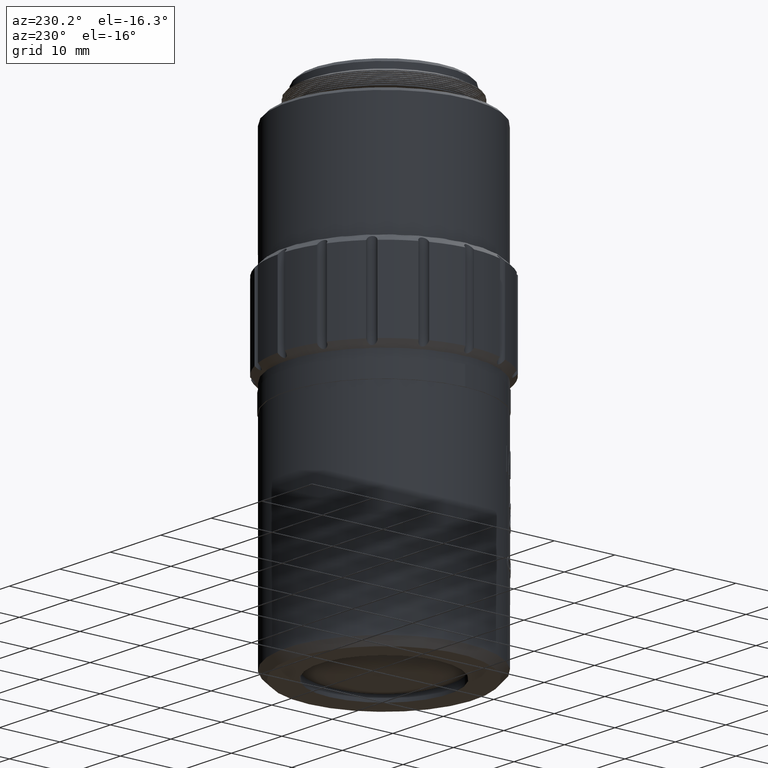
[diagram: clean part render]
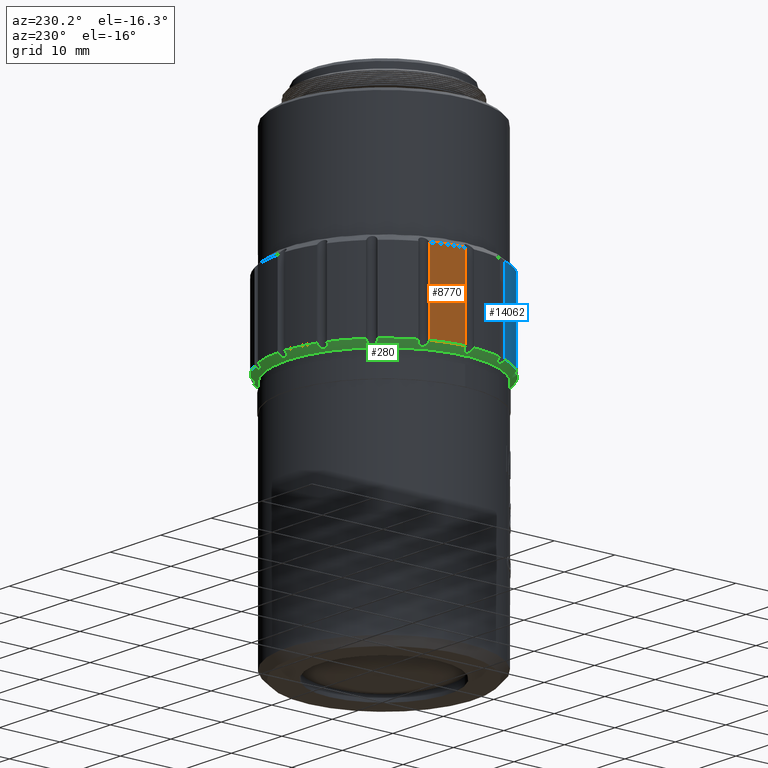
[diagram: same view with three faces highlighted in distinct colors, each labeled with its STEP entity id]
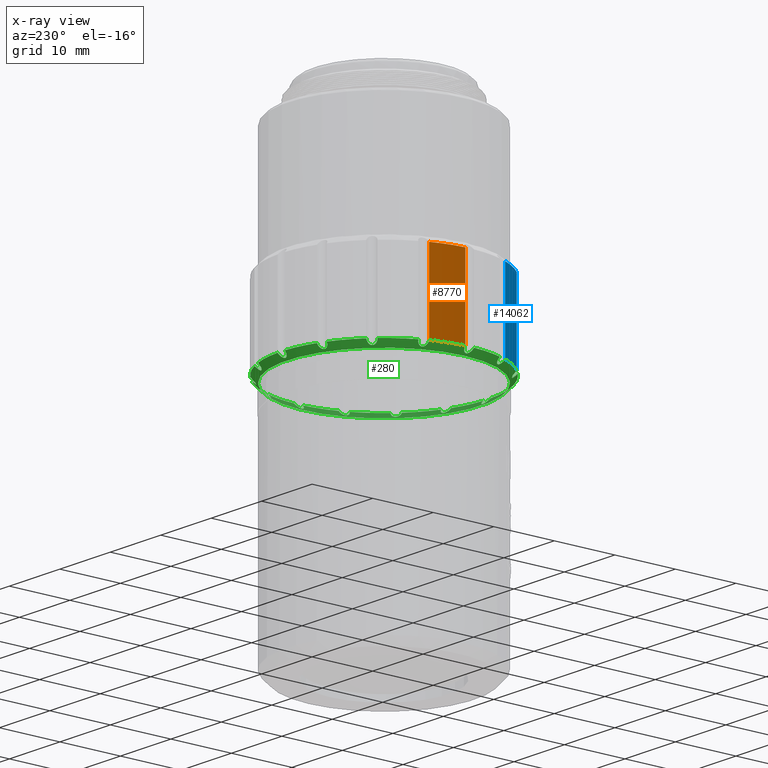
[diagram: x-ray of the same camera — body ghosted, the three highlighted faces saturated]
A machine part, auxiliary view with three faces highlighted in distinct colors.
The next image is the same camera in x-ray (body ghosted, the three faces saturated) — at least one of them is partly hidden behind the body in this view.
Their STEP definitions:

[orange] entity #8770 — the highlighted cylindrical surface (partial cylindrical patch) has radius 17 mm, axis along (-0, -0, -1).
#864 = CARTESIAN_POINT ( 'NONE',  ( -138.6262848226419635, 27.86120965566641772, -5.050000000000006928 ) ) ;
#1099 = EDGE_CURVE ( 'NONE', #17673, #10161, #13068, .T. ) ;
#1629 = CYLINDRICAL_SURFACE ( 'NONE', #13304, 16.99999999999998579 ) ;
#2352 = ORIENTED_EDGE ( 'NONE', *, *, #10345, .T. ) ;
#2440 = LINE ( 'NONE', #864, #11191 ) ;
#2548 = EDGE_LOOP ( 'NONE', ( #3011, #13245, #4026, #2352 ) ) ;
#2551 = DIRECTION ( 'NONE',  ( -0.000000000000000000, -0.000000000000000000, -1.000000000000000000 ) ) ;
#3011 = ORIENTED_EDGE ( 'NONE', *, *, #10716, .T. ) ;
#4026 = ORIENTED_EDGE ( 'NONE', *, *, #1099, .T. ) ;
#5083 = DIRECTION ( 'NONE',  ( -1.000000000000000000, 0.000000000000000000, 0.000000000000000000 ) ) ;
#5206 = CARTESIAN_POINT ( 'NONE',  ( -139.6482864039182346, 22.72326074510129246, -6.499999999999999112 ) ) ;
#6190 = DIRECTION ( 'NONE',  ( 1.000000000000000000, 0.000000000000000000, 0.000000000000000000 ) ) ;
#7058 = LINE ( 'NONE', #14191, #15279 ) ;
#7080 = CARTESIAN_POINT ( 'NONE',  ( -139.6482864039182346, 22.72326074510129246, 6.500000000000001776 ) ) ;
#7141 = DIRECTION ( 'NONE',  ( -1.000000000000000000, 0.000000000000000000, 0.000000000000000000 ) ) ;
#7445 = AXIS2_PLACEMENT_3D ( 'NONE', #9162, #17587, #6190 ) ;
#8770 = ADVANCED_FACE ( 'NONE', ( #18265 ), #1629, .T. ) ;
#9162 = CARTESIAN_POINT ( 'NONE',  ( -122.6630341068842540, 22.01530283243863195, -6.499999999999999112 ) ) ;
#10161 = VERTEX_POINT ( 'NONE', #5206 ) ;
#10345 = EDGE_CURVE ( 'NONE', #10161, #12872, #7058, .T. ) ;
#10595 = CARTESIAN_POINT ( 'NONE',  ( -138.6262848226419635, 27.86120965566641772, 6.500000000000000000 ) ) ;
#10716 = EDGE_CURVE ( 'NONE', #12872, #12944, #10833, .T. ) ;
#10833 = CIRCLE ( 'NONE', #16455, 16.99999999999998579 ) ;
#11191 = VECTOR ( 'NONE', #13789, 1000.000000000000000 ) ;
#11487 = DIRECTION ( 'NONE',  ( -0.000000000000000000, -0.000000000000000000, -1.000000000000000000 ) ) ;
#11698 = EDGE_CURVE ( 'NONE', #12944, #17673, #2440, .T. ) ;
#12872 = VERTEX_POINT ( 'NONE', #7080 ) ;
#12944 = VERTEX_POINT ( 'NONE', #10595 ) ;
#13068 = CIRCLE ( 'NONE', #7445, 17.00000000000000000 ) ;
#13245 = ORIENTED_EDGE ( 'NONE', *, *, #11698, .T. ) ;
#13304 = AXIS2_PLACEMENT_3D ( 'NONE', #18358, #11487, #7141 ) ;
#13789 = DIRECTION ( 'NONE',  ( 0.000000000000000000, 0.000000000000000000, -1.000000000000000000 ) ) ;
#13812 = CARTESIAN_POINT ( 'NONE',  ( -122.6630341068842540, 22.01530283243863195, 6.500000000000000000 ) ) ;
#14191 = CARTESIAN_POINT ( 'NONE',  ( -139.6482864039182346, 22.72326074510129246, -5.050000000000006928 ) ) ;
#15279 = VECTOR ( 'NONE', #16969, 1000.000000000000000 ) ;
#16455 = AXIS2_PLACEMENT_3D ( 'NONE', #13812, #2551, #5083 ) ;
#16717 = CARTESIAN_POINT ( 'NONE',  ( -138.6262848226419635, 27.86120965566641772, -6.499999999999999112 ) ) ;
#16969 = DIRECTION ( 'NONE',  ( -0.000000000000000000, -0.000000000000000000, 1.000000000000000000 ) ) ;
#17587 = DIRECTION ( 'NONE',  ( 0.000000000000000000, 0.000000000000000000, 1.000000000000000000 ) ) ;
#17673 = VERTEX_POINT ( 'NONE', #16717 ) ;
#18265 = FACE_OUTER_BOUND ( 'NONE', #2548, .T. ) ;
#18358 = CARTESIAN_POINT ( 'NONE',  ( -122.6630341068842540, 22.01530283243863195, -8.750073880203553145 ) ) ;

[blue] entity #14062 — the highlighted cylindrical surface (partial cylindrical patch) has radius 17 mm, axis along (-0, -0, -1).
#645 = AXIS2_PLACEMENT_3D ( 'NONE', #5141, #13687, #856 ) ;
#856 = DIRECTION ( 'NONE',  ( -1.000000000000000000, 0.000000000000000000, 0.000000000000000000 ) ) ;
#1106 = VERTEX_POINT ( 'NONE', #14818 ) ;
#1513 = CIRCLE ( 'NONE', #645, 16.99999999999998579 ) ;
#1816 = VERTEX_POINT ( 'NONE', #3301 ) ;
#2018 = LINE ( 'NONE', #6225, #11038 ) ;
#2229 = EDGE_CURVE ( 'NONE', #1816, #1106, #2018, .T. ) ;
#3301 = CARTESIAN_POINT ( 'NONE',  ( -135.1740230271197731, 10.50551759387993300, -6.499999999999998224 ) ) ;
#4758 = EDGE_CURVE ( 'NONE', #13360, #1816, #14680, .T. ) ;
#4917 = DIRECTION ( 'NONE',  ( -0.000000000000000000, -0.000000000000000000, 1.000000000000000000 ) ) ;
#5141 = CARTESIAN_POINT ( 'NONE',  ( -122.6630341068842540, 22.01530283243863195, 6.500000000000000000 ) ) ;
#5455 = EDGE_CURVE ( 'NONE', #1106, #7221, #1513, .T. ) ;
#5576 = AXIS2_PLACEMENT_3D ( 'NONE', #10436, #10069, #13224 ) ;
#6079 = AXIS2_PLACEMENT_3D ( 'NONE', #12369, #15328, #14962 ) ;
#6225 = CARTESIAN_POINT ( 'NONE',  ( -135.1740230271197731, 10.50551759387992945, -5.050000000000006928 ) ) ;
#6270 = CARTESIAN_POINT ( 'NONE',  ( -138.0844372946665999, 14.86126035843439475, 6.500000000000000000 ) ) ;
#7221 = VERTEX_POINT ( 'NONE', #6270 ) ;
#8205 = CARTESIAN_POINT ( 'NONE',  ( -138.0844372946665999, 14.86126035843439475, -6.499999999999999112 ) ) ;
#10069 = DIRECTION ( 'NONE',  ( -0.000000000000000000, -0.000000000000000000, -1.000000000000000000 ) ) ;
#10436 = CARTESIAN_POINT ( 'NONE',  ( -122.6630341068842540, 22.01530283243863195, -8.750073880203553145 ) ) ;
#10851 = ORIENTED_EDGE ( 'NONE', *, *, #5455, .T. ) ;
#11038 = VECTOR ( 'NONE', #4917, 1000.000000000000000 ) ;
#11111 = EDGE_CURVE ( 'NONE', #7221, #13360, #13769, .T. ) ;
#11964 = ORIENTED_EDGE ( 'NONE', *, *, #2229, .T. ) ;
#12089 = VECTOR ( 'NONE', #12372, 1000.000000000000000 ) ;
#12369 = CARTESIAN_POINT ( 'NONE',  ( -122.6630341068842540, 22.01530283243863195, -6.499999999999999112 ) ) ;
#12372 = DIRECTION ( 'NONE',  ( 0.000000000000000000, 0.000000000000000000, -1.000000000000000000 ) ) ;
#12672 = ORIENTED_EDGE ( 'NONE', *, *, #11111, .T. ) ;
#13040 = FACE_OUTER_BOUND ( 'NONE', #15676, .T. ) ;
#13224 = DIRECTION ( 'NONE',  ( -1.000000000000000000, 0.000000000000000000, 0.000000000000000000 ) ) ;
#13360 = VERTEX_POINT ( 'NONE', #8205 ) ;
#13687 = DIRECTION ( 'NONE',  ( -0.000000000000000000, -0.000000000000000000, -1.000000000000000000 ) ) ;
#13769 = LINE ( 'NONE', #15421, #12089 ) ;
#13963 = ORIENTED_EDGE ( 'NONE', *, *, #4758, .T. ) ;
#14062 = ADVANCED_FACE ( 'NONE', ( #13040 ), #17197, .T. ) ;
#14680 = CIRCLE ( 'NONE', #6079, 17.00000000000000000 ) ;
#14818 = CARTESIAN_POINT ( 'NONE',  ( -135.1740230271197731, 10.50551759387993300, 6.500000000000000000 ) ) ;
#14962 = DIRECTION ( 'NONE',  ( 1.000000000000000000, 0.000000000000000000, 0.000000000000000000 ) ) ;
#15328 = DIRECTION ( 'NONE',  ( 0.000000000000000000, 0.000000000000000000, 1.000000000000000000 ) ) ;
#15421 = CARTESIAN_POINT ( 'NONE',  ( -138.0844372946665999, 14.86126035843440008, -5.050000000000006928 ) ) ;
#15676 = EDGE_LOOP ( 'NONE', ( #10851, #12672, #13963, #11964 ) ) ;
#17197 = CYLINDRICAL_SURFACE ( 'NONE', #5576, 16.99999999999998579 ) ;

[green] entity #280 — the highlighted conical surface has half-angle 45 deg.
#21 = CARTESIAN_POINT ( 'NONE',  ( -139.1329467996962421, 21.53760777854898123, -7.023254621753843630 ) ) ;
#259 = EDGE_CURVE ( 'NONE', #4172, #4512, #7532, .T. ) ;
#280 = ADVANCED_FACE ( 'NONE', ( #10692, #11989 ), #4779, .T. ) ;
#312 = CARTESIAN_POINT ( 'NONE',  ( -134.6468024694666497, 33.32350837113173725, -7.023254621753838300 ) ) ;
#437 = CARTESIAN_POINT ( 'NONE',  ( -107.5004475295183965, 15.97490521189294910, -7.178776448947757238 ) ) ;
#455 = EDGE_CURVE ( 'NONE', #2254, #1238, #925, .T. ) ;
#484 = CARTESIAN_POINT ( 'NONE',  ( -122.2575469930893064, 38.42587846107456784, -7.084665610043467510 ) ) ;
#494 = CARTESIAN_POINT ( 'NONE',  ( -134.2627692890847015, 10.57459830481172247, -7.207941769656402542 ) ) ;
#601 = CARTESIAN_POINT ( 'NONE',  ( -116.8680047853843860, 6.363622042185236083, -6.809977491739671152 ) ) ;
#647 = CARTESIAN_POINT ( 'NONE',  ( -122.6630341068842540, 22.01530283243863195, -7.500000000000000000 ) ) ;
#680 = CARTESIAN_POINT ( 'NONE',  ( -111.3548285681911096, 33.99907119502093167, -7.023254621753832083 ) ) ;
#693 = CARTESIAN_POINT ( 'NONE',  ( -115.9189387037750407, 6.981893576148179292, -7.023254621753847182 ) ) ;
#697 = DIRECTION ( 'NONE',  ( 0.000000000000000000, 0.000000000000000000, 1.000000000000000000 ) ) ;
#738 = DIRECTION ( 'NONE',  ( 1.000000000000000000, 0.000000000000000000, 0.000000000000000000 ) ) ;
#763 = B_SPLINE_CURVE_WITH_KNOTS ( 'NONE', 3,
 ( #4005, #18282, #9761, #11234, #2592, #15052, #1288, #18107, #2685, #6714, #9489, #18198, #928, #2503, #17923, #13851 ),
 .UNSPECIFIED., .F., .F.,
 ( 4, 2, 2, 2, 2, 2, 2, 4 ),
 ( 2.788950520331170165E-07, 0.0003320497425292173710, 0.0006638205900064015610, 0.0009955914374835859136, 0.001327362284960770158, 0.001659133132437954402, 0.001990903979915138646, 0.002654445674869505400 ),
 .UNSPECIFIED. ) ;
#808 = CIRCLE ( 'NONE', #12727, 17.00000000000000000 ) ;
#816 = CARTESIAN_POINT ( 'NONE',  ( -123.2566986126764021, 5.411140253943621303, -6.885319302732680669 ) ) ;
#822 = CARTESIAN_POINT ( 'NONE',  ( -106.3430706138452422, 22.23717377754582358, -7.178776448947761679 ) ) ;
#854 = B_SPLINE_CURVE_WITH_KNOTS ( 'NONE', 3,
 ( #5189, #7619, #13366, #7989, #4911, #6314, #6404, #902, #12154, #3329, #2103, #3608, #17898, #9007, #11968, #15024 ),
 .UNSPECIFIED., .F., .F.,
 ( 4, 2, 2, 2, 2, 2, 2, 4 ),
 ( 2.788950520283352509E-07, 0.0003320497425292090227, 0.0006638205900063896348, 0.0009955914374835703011, 0.001327362284960751076, 0.001659133132437931417, 0.001990903979915112192, 0.002654445674869467670 ),
 .UNSPECIFIED. ) ;
#859 = CARTESIAN_POINT ( 'NONE',  ( -128.5089409301117485, 37.97855354819644447, -6.500000000000000000 ) ) ;
#870 = VERTEX_POINT ( 'NONE', #8512 ) ;
#902 = CARTESIAN_POINT ( 'NONE',  ( -107.5001229160044147, 28.05514493656333741, -7.178683898143450648 ) ) ;
#925 = B_SPLINE_CURVE_WITH_KNOTS ( 'NONE', 3,
 ( #6092, #15583, #15404, #9837, #15493, #2848, #8446, #11653, #8538, #17304, #7394, #13053, #312, #10267, #16283, #16099 ),
 .UNSPECIFIED., .F., .F.,
 ( 4, 2, 2, 2, 2, 2, 2, 4 ),
 ( 2.788950520332541829E-07, 0.0003320497425292192142, 0.0006638205900064052473, 0.0009955914374835911178, 0.001327362284960777097, 0.001659133132437962859, 0.001990903979915149054, 0.002654445674869454225 ),
 .UNSPECIFIED. ) ;
#928 = CARTESIAN_POINT ( 'NONE',  ( -129.4071295099933820, 37.04871208872913968, -7.023254621753823201 ) ) ;
#967 = CARTESIAN_POINT ( 'NONE',  ( -116.8171272836564185, 37.97855354819631657, -6.499999999999999112 ) ) ;
#1026 = CARTESIAN_POINT ( 'NONE',  ( -137.6718933315184756, 28.35389267251765588, -7.207941769656407871 ) ) ;
#1074 = EDGE_CURVE ( 'NONE', #16016, #10518, #854, .T. ) ;
#1091 = CARTESIAN_POINT ( 'NONE',  ( -122.5526404599763737, 5.723575503693937527, -7.208279676267793867 ) ) ;
#1099 = EDGE_CURVE ( 'NONE', #17673, #10161, #13068, .T. ) ;
#1120 = CARTESIAN_POINT ( 'NONE',  ( -138.6262848226419635, 27.86120965566641772, -6.499999999999999112 ) ) ;
#1178 = EDGE_CURVE ( 'NONE', #12426, #2991, #17451, .T. ) ;
#1195 = DIRECTION ( 'NONE',  ( 0.000000000000000000, 0.000000000000000000, 1.000000000000000000 ) ) ;
#1198 = CARTESIAN_POINT ( 'NONE',  ( -111.2525474764514968, 9.626545876246218825, -6.657200975131933873 ) ) ;
#1238 = VERTEX_POINT ( 'NONE', #11346 ) ;
#1284 = CARTESIAN_POINT ( 'NONE',  ( -111.2081576685521469, 9.561559027344452844, -6.579304794093290276 ) ) ;
#1288 = CARTESIAN_POINT ( 'NONE',  ( -128.5684682704053330, 37.33187097295077450, -7.084665610043471062 ) ) ;
#1293 = CARTESIAN_POINT ( 'NONE',  ( -137.8281482610470334, 28.98500792578666108, -6.809977491739674704 ) ) ;
#1329 = CARTESIAN_POINT ( 'NONE',  ( -138.0844372946665999, 14.86126035843439475, -6.499999999999999112 ) ) ;
#1390 = VERTEX_POINT ( 'NONE', #1552 ) ;
#1458 = ORIENTED_EDGE ( 'NONE', *, *, #13971, .F. ) ;
#1501 = CARTESIAN_POINT ( 'NONE',  ( -123.3709920195466196, 39.00055512947263026, -6.499999999999999112 ) ) ;
#1503 = CARTESIAN_POINT ( 'NONE',  ( -129.7421489032773536, 6.732415743855563406, -6.657200975131939202 ) ) ;
#1552 = CARTESIAN_POINT ( 'NONE',  ( -139.6482864039182346, 21.30734491977621303, -6.499999999999999112 ) ) ;
#1568 = CARTESIAN_POINT ( 'NONE',  ( -121.9550761942217747, 5.030050535404635426, -6.499999999999999112 ) ) ;
#1594 = CARTESIAN_POINT ( 'NONE',  ( -138.6262848226420488, 16.16939600921107356, -6.499999999999998224 ) ) ;
#1596 = CARTESIAN_POINT ( 'NONE',  ( -121.9712925257058771, 38.84390935965173242, -6.657200975131931209 ) ) ;
#1641 = CARTESIAN_POINT ( 'NONE',  ( -107.5691948588922315, 15.88271913001594982, -7.208279676267789426 ) ) ;
#1688 = AXIS2_PLACEMENT_3D ( 'NONE', #1955, #8945, #10247 ) ;
#1761 = DIRECTION ( 'NONE',  ( 1.000000000000000000, 0.000000000000000000, 0.000000000000000000 ) ) ;
#1777 = AXIS2_PLACEMENT_3D ( 'NONE', #2886, #6920, #5520 ) ;
#1816 = VERTEX_POINT ( 'NONE', #3301 ) ;
#1880 = CARTESIAN_POINT ( 'NONE',  ( -110.5023339539109770, 33.33643458982084695, -6.885319302732680669 ) ) ;
#1911 = DIRECTION ( 'NONE',  ( 1.000000000000000000, 0.000000000000000000, 0.000000000000000000 ) ) ;
#1936 = EDGE_CURVE ( 'NONE', #8426, #17694, #3754, .T. ) ;
#1955 = CARTESIAN_POINT ( 'NONE',  ( -122.6630341068842540, 22.01530283243863195, -6.499999999999999112 ) ) ;
#1990 = CARTESIAN_POINT ( 'NONE',  ( -122.6630341068842540, 22.01530283243863195, -6.499999999999999112 ) ) ;
#2008 = EDGE_CURVE ( 'NONE', #1238, #8075, #7182, .T. ) ;
#2032 = CARTESIAN_POINT ( 'NONE',  ( -110.1520451866487917, 10.50551759387985129, -6.499999999999999112 ) ) ;
#2103 = CARTESIAN_POINT ( 'NONE',  ( -107.6702601991497232, 28.46566450307105356, -7.178776448947765232 ) ) ;
#2165 = ORIENTED_EDGE ( 'NONE', *, *, #11230, .F. ) ;
#2169 = CARTESIAN_POINT ( 'NONE',  ( -116.8023723665981493, 6.614565099563458617, -7.021922413567945220 ) ) ;
#2170 = CARTESIAN_POINT ( 'NONE',  ( -116.8016040699160953, 37.41432405442173348, -7.023254621753839189 ) ) ;
#2184 = CARTESIAN_POINT ( 'NONE',  ( -107.2416309191018513, 29.16934530644275370, -6.499999999999999112 ) ) ;
#2254 = VERTEX_POINT ( 'NONE', #6137 ) ;
#2279 = ORIENTED_EDGE ( 'NONE', *, *, #11614, .F. ) ;
#2294 = CARTESIAN_POINT ( 'NONE',  ( -123.3693399954277226, 5.109355329497934584, -6.579304794093292053 ) ) ;
#2356 = CARTESIAN_POINT ( 'NONE',  ( -115.7604216937178734, 37.12836322245009057, -6.885319302732678892 ) ) ;
#2369 = EDGE_CURVE ( 'NONE', #5838, #14425, #13067, .T. ) ;
#2371 = CARTESIAN_POINT ( 'NONE',  ( -138.9830849167741178, 22.23781123201073484, -7.178683898143453312 ) ) ;
#2430 = B_SPLINE_CURVE_WITH_KNOTS ( 'NONE', 3,
 ( #12019, #11925, #3661, #10540, #1880, #7580, #3565, #4686, #6365, #5057, #13512, #16371, #680, #17664, #11833, #13236 ),
 .UNSPECIFIED., .F., .F.,
 ( 4, 2, 2, 2, 2, 2, 2, 4 ),
 ( 2.788950520313550821E-07, 0.0003320497425292064206, 0.0006638205900063815033, 0.0009955914374835568570, 0.001327362284960731777, 0.001659133132437906914, 0.001990903979915082268, 0.002654445674869429939 ),
 .UNSPECIFIED. ) ;
#2469 = VERTEX_POINT ( 'NONE', #5927 ) ;
#2483 = CARTESIAN_POINT ( 'NONE',  ( -121.9583805133717505, 5.188673128603737972, -6.658622593199102546 ) ) ;
#2490 = CARTESIAN_POINT ( 'NONE',  ( -106.1931214140723085, 22.49299788632839636, -7.023254621753837412 ) ) ;
#2503 = CARTESIAN_POINT ( 'NONE',  ( -129.6434442894983476, 37.16713622964855546, -6.817917757091771058 ) ) ;
#2541 = CARTESIAN_POINT ( 'NONE',  ( -138.0637718397595108, 16.15464109215254140, -7.021922413567930121 ) ) ;
#2585 = AXIS2_PLACEMENT_3D ( 'NONE', #16249, #4837, #13386 ) ;
#2588 = CARTESIAN_POINT ( 'NONE',  ( -111.3419023495018934, 9.854602679465513049, -6.885319302732679780 ) ) ;
#2592 = CARTESIAN_POINT ( 'NONE',  ( -128.4686975478907698, 37.58273436394991052, -6.885319302732679780 ) ) ;
#2685 = CARTESIAN_POINT ( 'NONE',  ( -128.7938403834173471, 37.11022882713182014, -7.207941769656397213 ) ) ;
#2806 = CARTESIAN_POINT ( 'NONE',  ( -116.8171272836566459, 6.052052116680864735, -6.500000000000000000 ) ) ;
#2848 = CARTESIAN_POINT ( 'NONE',  ( -133.9711867122778415, 34.00095105871290002, -7.021922413567941668 ) ) ;
#2886 = CARTESIAN_POINT ( 'NONE',  ( -122.6630341068842540, 22.01530283243863195, -6.499999999999999112 ) ) ;
#2892 = CARTESIAN_POINT ( 'NONE',  ( -134.1728193454430595, 9.504313912203208758, -6.499999999999999112 ) ) ;
#2902 = CARTESIAN_POINT ( 'NONE',  ( -128.4512914845274736, 6.199864792125380220, -6.658622593199110540 ) ) ;
#2991 = VERTEX_POINT ( 'NONE', #15565 ) ;
#3093 = CARTESIAN_POINT ( 'NONE',  ( -123.1407291607738301, 38.48521552525058098, -7.023254621753839189 ) ) ;
#3105 = VERTEX_POINT ( 'NONE', #14998 ) ;
#3227 = CARTESIAN_POINT ( 'NONE',  ( -107.3482761606091174, 16.10855303056908738, -7.085877810620005768 ) ) ;
#3228 = VERTEX_POINT ( 'NONE', #1594 ) ;
#3253 = DIRECTION ( 'NONE',  ( 1.000000000000000000, 0.000000000000000000, 0.000000000000000000 ) ) ;
#3273 = B_SPLINE_CURVE_WITH_KNOTS ( 'NONE', 3,
 ( #18276, #7064, #11228, #16882, #5663, #11319, #9485, #15140, #13758, #1641, #437, #3227, #12900, #10299, #4260, #15680 ),
 .UNSPECIFIED., .F., .F.,
 ( 4, 2, 2, 2, 2, 2, 2, 4 ),
 ( 2.788950520311143660E-07, 0.0003320497425292079927, 0.0006638205900063848643, 0.0009955914374835616275, 0.001327362284960738499, 0.001659133132437915588, 0.001990903979915092242, 0.002654445674869447287 ),
 .UNSPECIFIED. ) ;
#3293 = CIRCLE ( 'NONE', #7171, 17.00000000000000000 ) ;
#3301 = CARTESIAN_POINT ( 'NONE',  ( -135.1740230271197731, 10.50551759387993300, -6.499999999999998224 ) ) ;
#3329 = CARTESIAN_POINT ( 'NONE',  ( -107.6536864983122399, 28.35186739665608613, -7.208279676267802749 ) ) ;
#3384 = CARTESIAN_POINT ( 'NONE',  ( -135.1167779119784029, 10.56042639410657635, -6.579304794093305375 ) ) ;
#3409 = CARTESIAN_POINT ( 'NONE',  ( -122.6630341068842540, 22.01530283243863195, -6.499999999999999112 ) ) ;
#3439 = CARTESIAN_POINT ( 'NONE',  ( -122.6630341068842540, 22.01530283243863195, -6.499999999999999112 ) ) ;
#3483 = CARTESIAN_POINT ( 'NONE',  ( -115.5839193104910976, 37.29818992102168096, -6.657200975131925880 ) ) ;
#3565 = CARTESIAN_POINT ( 'NONE',  ( -110.7722821088528917, 33.33260945477358916, -7.084665610043468398 ) ) ;
#3569 = CARTESIAN_POINT ( 'NONE',  ( -134.5537861049155310, 10.69799621010359125, -7.084665610043470174 ) ) ;
#3581 = CARTESIAN_POINT ( 'NONE',  ( -115.9171816794894454, 37.04938257742705332, -7.021922413567937227 ) ) ;
#3608 = CARTESIAN_POINT ( 'NONE',  ( -107.6571620711681732, 28.66776918880592717, -7.085877810620007544 ) ) ;
#3631 = DIRECTION ( 'NONE',  ( 0.000000000000000000, 0.000000000000000000, 1.000000000000000000 ) ) ;
#3637 = DIRECTION ( 'NONE',  ( 1.000000000000000000, 0.000000000000000000, 0.000000000000000000 ) ) ;
#3661 = CARTESIAN_POINT ( 'NONE',  ( -110.2742771506917308, 33.42578946287125063, -6.657200975131932985 ) ) ;
#3705 = CARTESIAN_POINT ( 'NONE',  ( -122.4411631617771405, 5.695339339399591694, -7.178776448947756350 ) ) ;
#3754 = B_SPLINE_CURVE_WITH_KNOTS ( 'NONE', 3,
 ( #9252, #15095, #3483, #9164, #2356, #3581, #11943, #8054, #16295, #12032, #14912, #14819, #2170, #7873, #13709, #967 ),
 .UNSPECIFIED., .F., .F.,
 ( 4, 2, 2, 2, 2, 2, 2, 4 ),
 ( 2.788950520255451243E-07, 0.0003320497425292072880, 0.0006638205900063890927, 0.0009955914374835707348, 0.001327362284960752594, 0.001659133132437934236, 0.001990903979915115661, 0.002654445674869453358 ),
 .UNSPECIFIED. ) ;
#3815 = EDGE_CURVE ( 'NONE', #14338, #2254, #3293, .T. ) ;
#3881 = VERTEX_POINT ( 'NONE', #4177 ) ;
#3892 = CARTESIAN_POINT ( 'NONE',  ( -122.0123316217018896, 5.345546748736459186, -6.817917757091778164 ) ) ;
#3899 = CARTESIAN_POINT ( 'NONE',  ( -105.8364044030493289, 22.71995642595118525, -6.658622593199107875 ) ) ;
#3957 = CARTESIAN_POINT ( 'NONE',  ( -138.2304656383955148, 16.20963939143204158, -6.885319302732670010 ) ) ;
#4001 = CARTESIAN_POINT ( 'NONE',  ( -110.1520451866487917, 10.50551759387985129, -6.499999999999999112 ) ) ;
#4005 = CARTESIAN_POINT ( 'NONE',  ( -128.5089409301117485, 37.97855354819644447, -6.500000000000000000 ) ) ;
#4010 = CARTESIAN_POINT ( 'NONE',  ( -137.6971138518726718, 28.76115525983340504, -7.021922413567946109 ) ) ;
#4083 = CARTESIAN_POINT ( 'NONE',  ( -110.2665448044274257, 10.61534419870216794, -6.658622593199103434 ) ) ;
#4091 = DIRECTION ( 'NONE',  ( 1.000000000000000000, 0.000000000000000000, 0.000000000000000000 ) ) ;
#4094 = CARTESIAN_POINT ( 'NONE',  ( -137.9459211954673208, 29.09441762883175997, -6.657200975131940091 ) ) ;
#4123 = CIRCLE ( 'NONE', #14501, 17.00000000000000000 ) ;
#4172 = VERTEX_POINT ( 'NONE', #17986 ) ;
#4177 = CARTESIAN_POINT ( 'NONE',  ( -129.8170765808886529, 6.593899644656365133, -6.499999999999999112 ) ) ;
#4260 = CARTESIAN_POINT ( 'NONE',  ( -106.8475960665709863, 16.22704545479547633, -6.658622593199109652 ) ) ;
#4262 = CARTESIAN_POINT ( 'NONE',  ( -111.2803527081104704, 10.31794703724820295, -7.178683898143444431 ) ) ;
#4301 = CARTESIAN_POINT ( 'NONE',  ( -139.4916406340973936, 22.70704441361695203, -6.657200975131927656 ) ) ;
#4306 = CARTESIAN_POINT ( 'NONE',  ( -122.0693696010919354, 38.61946541093364260, -6.885319302732680669 ) ) ;
#4366 = CIRCLE ( 'NONE', #2585, 17.00000000000000000 ) ;
#4461 = CARTESIAN_POINT ( 'NONE',  ( -105.7570866039435487, 21.30899694389525223, -6.579304794093297382 ) ) ;
#4494 = ORIENTED_EDGE ( 'NONE', *, *, #1936, .F. ) ;
#4496 = CARTESIAN_POINT ( 'NONE',  ( -122.8849050519912680, 38.33526632547767576, -7.178776448947763456 ) ) ;
#4512 = VERTEX_POINT ( 'NONE', #859 ) ;
#4554 = CARTESIAN_POINT ( 'NONE',  ( -106.3713067781395836, 22.12569647934654071, -7.208279676267795644 ) ) ;
#4563 = B_SPLINE_CURVE_WITH_KNOTS ( 'NONE', 3,
 ( #18101, #1284, #1198, #9580, #2588, #15590, #8453, #4262, #11321, #7065, #14109, #5579, #6977, #12719, #4083, #4001 ),
 .UNSPECIFIED., .F., .F.,
 ( 4, 2, 2, 2, 2, 2, 2, 4 ),
 ( 2.788950520487731500E-07, 0.0003320497425292276710, 0.0006638205900064065483, 0.0009955914374835854799, 0.001327362284960764303, 0.001659133132437943126, 0.001990903979915122166, 0.002654445674869479813 ),
 .UNSPECIFIED. ) ;
#4587 = CARTESIAN_POINT ( 'NONE',  ( -123.3676877003966581, 38.84193253627352505, -6.658622593199108763 ) ) ;
#4686 = CARTESIAN_POINT ( 'NONE',  ( -110.9656783116936936, 33.39798423121229121, -7.178683898143439990 ) ) ;
#4758 = EDGE_CURVE ( 'NONE', #13360, #1816, #14680, .T. ) ;
#4779 = CONICAL_SURFACE ( 'NONE', #11298, 16.00000000000000000, 0.7853981633974487231 ) ;
#4781 = ORIENTED_EDGE ( 'NONE', *, *, #17423, .F. ) ;
#4789 = CARTESIAN_POINT ( 'NONE',  ( -116.7575999433631040, 6.698734691926534701, -7.084665610043473727 ) ) ;
#4794 = DIRECTION ( 'NONE',  ( 1.000000000000000000, 0.000000000000000000, 0.000000000000000000 ) ) ;
#4828 = CIRCLE ( 'NONE', #18152, 17.00000000000000000 ) ;
#4836 = EDGE_CURVE ( 'NONE', #1390, #3228, #13120, .T. ) ;
#4837 = DIRECTION ( 'NONE',  ( 0.000000000000000000, 0.000000000000000000, 1.000000000000000000 ) ) ;
#4883 = CARTESIAN_POINT ( 'NONE',  ( -116.2126724362517223, 7.022528924704158015, -7.178776448947770561 ) ) ;
#4911 = CARTESIAN_POINT ( 'NONE',  ( -107.0956025753729506, 27.82096627344509798, -6.885319302732685998 ) ) ;
#4964 = CARTESIAN_POINT ( 'NONE',  ( -134.9056399269915971, 10.67175492490524924, -6.809977491739680033 ) ) ;
#4972 = ORIENTED_EDGE ( 'NONE', *, *, #12361, .F. ) ;
#5008 = CARTESIAN_POINT ( 'NONE',  ( -122.7754857611496959, 5.723251672099896048, -7.207941769656403430 ) ) ;
#5057 = CARTESIAN_POINT ( 'NONE',  ( -111.2211033318150157, 33.61335380016456043, -7.208279676267788538 ) ) ;
#5061 = CARTESIAN_POINT ( 'NONE',  ( -133.9902155345884296, 9.767889125119769034, -6.817917757091782605 ) ) ;
#5189 = CARTESIAN_POINT ( 'NONE',  ( -106.6997833911264308, 27.86120965566607310, -6.499999999999999112 ) ) ;
#5206 = CARTESIAN_POINT ( 'NONE',  ( -139.6482864039182346, 22.72326074510129246, -6.499999999999999112 ) ) ;
#5273 = CARTESIAN_POINT ( 'NONE',  ( -139.6482864039182346, 21.30734491977621303, -6.499999999999999112 ) ) ;
#5314 = DIRECTION ( 'NONE',  ( 0.000000000000000000, 0.000000000000000000, 1.000000000000000000 ) ) ;
#5356 = CARTESIAN_POINT ( 'NONE',  ( -138.4753572806572492, 16.21435981332079734, -6.657200975131931209 ) ) ;
#5364 = ORIENTED_EDGE ( 'NONE', *, *, #16136, .F. ) ;
#5445 = CARTESIAN_POINT ( 'NONE',  ( -137.6723817154563108, 15.67873826822107119, -7.208279676267777880 ) ) ;
#5520 = DIRECTION ( 'NONE',  ( 1.000000000000000000, 0.000000000000000000, 0.000000000000000000 ) ) ;
#5579 = CARTESIAN_POINT ( 'NONE',  ( -110.7744579832573066, 10.69747345010514117, -7.085877810620002215 ) ) ;
#5589 = CARTESIAN_POINT ( 'NONE',  ( -137.8256206842501399, 28.05570045298440363, -7.178776448947755462 ) ) ;
#5663 = CARTESIAN_POINT ( 'NONE',  ( -107.5499737168727137, 15.11269041927239698, -6.885319302732676228 ) ) ;
#5718 = CARTESIAN_POINT ( 'NONE',  ( -129.0016239469632353, 7.006443607804359708, -7.207941769656403430 ) ) ;
#5809 = CARTESIAN_POINT ( 'NONE',  ( -137.9391536356100403, 14.92501538968204855, -6.658622593199094553 ) ) ;
#5838 = VERTEX_POINT ( 'NONE', #17205 ) ;
#5897 = EDGE_CURVE ( 'NONE', #3881, #3105, #10553, .T. ) ;
#5902 = CARTESIAN_POINT ( 'NONE',  ( -128.4411028738700509, 6.365443314272631881, -6.817917757091787045 ) ) ;
#5927 = CARTESIAN_POINT ( 'NONE',  ( -110.1520451866486496, 33.52508807099724208, -6.499999999999999112 ) ) ;
#5989 = CARTESIAN_POINT ( 'NONE',  ( -122.0273041602237214, 38.69323207536172760, -6.809977491739665822 ) ) ;
#6029 = VERTEX_POINT ( 'NONE', #7815 ) ;
#6079 = AXIS2_PLACEMENT_3D ( 'NONE', #12369, #15328, #14962 ) ;
#6081 = B_SPLINE_CURVE_WITH_KNOTS ( 'NONE', 3,
 ( #18056, #12131, #5356, #11014, #3957, #2541, #10738, #8233, #13892, #5445, #11104, #16757, #16387, #8413, #5809, #1329 ),
 .UNSPECIFIED., .F., .F.,
 ( 4, 2, 2, 2, 2, 2, 2, 4 ),
 ( 2.788950520142565574E-07, 0.0003320497425291912418, 0.0006638205900063681676, 0.0009955914374835451476, 0.001327362284960722236, 0.001659133132437899108, 0.001990903979915075762, 0.002654445674869433409 ),
 .UNSPECIFIED. ) ;
#6092 = CARTESIAN_POINT ( 'NONE',  ( -134.1728193454429174, 34.52629175267420436, -6.499999999999999112 ) ) ;
#6137 = CARTESIAN_POINT ( 'NONE',  ( -134.1728193454429174, 34.52629175267420436, -6.499999999999999112 ) ) ;
#6190 = DIRECTION ( 'NONE',  ( 1.000000000000000000, 0.000000000000000000, 0.000000000000000000 ) ) ;
#6273 = CARTESIAN_POINT ( 'NONE',  ( -133.9712396455773273, 10.03153446985625230, -7.023254621753835636 ) ) ;
#6314 = CARTESIAN_POINT ( 'NONE',  ( -107.2622963740090114, 27.87596457272460881, -7.021922413567946109 ) ) ;
#6365 = CARTESIAN_POINT ( 'NONE',  ( -111.0632989246837070, 33.45600736006544906, -7.207941769656400766 ) ) ;
#6368 = CARTESIAN_POINT ( 'NONE',  ( -135.1740230271197731, 10.50551759387993300, -6.499999999999998224 ) ) ;
#6386 = CARTESIAN_POINT ( 'NONE',  ( -138.6630341068842540, 22.01530283243863195, -7.500000000000000000 ) ) ;
#6401 = ORIENTED_EDGE ( 'NONE', *, *, #1074, .F. ) ;
#6404 = CARTESIAN_POINT ( 'NONE',  ( -107.3464659663720653, 27.92073699595962921, -7.084665610043471951 ) ) ;
#6450 = ORIENTED_EDGE ( 'NONE', *, *, #13752, .F. ) ;
#6460 = ORIENTED_EDGE ( 'NONE', *, *, #4836, .F. ) ;
#6502 = CARTESIAN_POINT ( 'NONE',  ( -123.0685212206790595, 5.604727203802704061, -7.084665610043474615 ) ) ;
#6537 = ORIENTED_EDGE ( 'NONE', *, *, #15276, .F. ) ;
#6637 = EDGE_CURVE ( 'NONE', #11287, #14809, #12264, .T. ) ;
#6674 = CARTESIAN_POINT ( 'NONE',  ( -139.2671966853792753, 22.60896733823087246, -6.885319302732691327 ) ) ;
#6705 = CARTESIAN_POINT ( 'NONE',  ( -122.6630341068842540, 22.01530283243863195, -6.499999999999999112 ) ) ;
#6714 = CARTESIAN_POINT ( 'NONE',  ( -128.9995986711018077, 37.02465044101067804, -7.208279676267784986 ) ) ;
#6800 = B_SPLINE_CURVE_WITH_KNOTS ( 'NONE', 3,
 ( #6368, #3384, #13239, #4964, #16010, #7492, #3569, #12116, #494, #9062, #11836, #17764, #6273, #5061, #13148, #10725 ),
 .UNSPECIFIED., .F., .F.,
 ( 4, 2, 2, 2, 2, 2, 2, 4 ),
 ( 2.788950520674471031E-07, 0.0003320497425292410609, 0.0006638205900064146799, 0.0009955914374835882989, 0.001327362284960761918, 0.001659133132437935537, 0.001990903979915109156, 0.002654445674869463333 ),
 .UNSPECIFIED. ) ;
#6842 = DIRECTION ( 'NONE',  ( 1.000000000000000000, 0.000000000000000000, 0.000000000000000000 ) ) ;
#6882 = EDGE_CURVE ( 'NONE', #12401, #3881, #14250, .T. ) ;
#6901 = AXIS2_PLACEMENT_3D ( 'NONE', #11067, #8107, #3637 ) ;
#6920 = DIRECTION ( 'NONE',  ( 0.000000000000000000, 0.000000000000000000, 1.000000000000000000 ) ) ;
#6977 = CARTESIAN_POINT ( 'NONE',  ( -110.6792657443018300, 10.70709729374562080, -7.023254621753834748 ) ) ;
#7064 = CARTESIAN_POINT ( 'NONE',  ( -107.3142667929345322, 14.89313526051182102, -6.579304794093291164 ) ) ;
#7065 = CARTESIAN_POINT ( 'NONE',  ( -111.0649831391582012, 10.57337205736953756, -7.208279676267789426 ) ) ;
#7077 = EDGE_CURVE ( 'NONE', #3105, #5838, #9514, .T. ) ;
#7105 = CARTESIAN_POINT ( 'NONE',  ( -139.5689816098249594, 22.72160872098213247, -6.579304794093306263 ) ) ;
#7107 = EDGE_CURVE ( 'NONE', #14809, #15856, #12415, .T. ) ;
#7171 = AXIS2_PLACEMENT_3D ( 'NONE', #3439, #17544, #1761 ) ;
#7182 = CIRCLE ( 'NONE', #12522, 17.00000000000000000 ) ;
#7201 = EDGE_CURVE ( 'NONE', #2469, #6029, #2430, .T. ) ;
#7204 = CARTESIAN_POINT ( 'NONE',  ( -122.4405257073121049, 38.33535364232844955, -7.178683898143443542 ) ) ;
#7206 = CARTESIAN_POINT ( 'NONE',  ( -129.4088865342789632, 6.981223087450178610, -7.021922413567923904 ) ) ;
#7348 = CARTESIAN_POINT ( 'NONE',  ( -106.1918295792031444, 21.53624108468981291, -7.021922413567939003 ) ) ;
#7381 = CARTESIAN_POINT ( 'NONE',  ( -123.3137365920665047, 38.68505891614081094, -6.817917757091787045 ) ) ;
#7394 = CARTESIAN_POINT ( 'NONE',  ( -134.3598774113625609, 33.39837323724994889, -7.178776448947749245 ) ) ;
#7444 = CARTESIAN_POINT ( 'NONE',  ( -122.6630341068842540, 22.01530283243863195, -6.499999999999999112 ) ) ;
#7445 = AXIS2_PLACEMENT_3D ( 'NONE', #9162, #17587, #6190 ) ;
#7492 = CARTESIAN_POINT ( 'NONE',  ( -134.6486823331584901, 10.70715022704508534, -7.021922413567940779 ) ) ;
#7525 = AXIS2_PLACEMENT_3D ( 'NONE', #13510, #10352, #14622 ) ;
#7532 = CIRCLE ( 'NONE', #10423, 17.00000000000000000 ) ;
#7580 = CARTESIAN_POINT ( 'NONE',  ( -110.6773858806099469, 33.32345543783208086, -7.021922413567936339 ) ) ;
#7619 = CARTESIAN_POINT ( 'NONE',  ( -106.7736836694794960, 27.83238729613036355, -6.579304794093290276 ) ) ;
#7815 = CARTESIAN_POINT ( 'NONE',  ( -111.1532488683253348, 34.52629175267396278, -6.499999999999999112 ) ) ;
#7866 = ORIENTED_EDGE ( 'NONE', *, *, #14808, .F. ) ;
#7873 = CARTESIAN_POINT ( 'NONE',  ( -116.8849653398983719, 37.66516235060459650, -6.817917757091785269 ) ) ;
#7918 = DIRECTION ( 'NONE',  ( 0.000000000000000000, 0.000000000000000000, 1.000000000000000000 ) ) ;
#7938 = B_SPLINE_CURVE_WITH_KNOTS ( 'NONE', 3,
 ( #8070, #7105, #4301, #14146, #6674, #15110, #12757, #2371, #13726, #8155, #17975, #13814, #21, #8587, #9975, #5273 ),
 .UNSPECIFIED., .F., .F.,
 ( 4, 2, 2, 2, 2, 2, 2, 4 ),
 ( 2.788950520995468460E-07, 0.0003320497425292776527, 0.0006638205900064557711, 0.0009955914374836340522, 0.001327362284960812008, 0.001659133132437989964, 0.001990903979915168570, 0.002654445674869526216 ),
 .UNSPECIFIED. ) ;
#7989 = CARTESIAN_POINT ( 'NONE',  ( -107.0113533166307747, 27.81033215393832947, -6.809977491739666711 ) ) ;
#8054 = CARTESIAN_POINT ( 'NONE',  ( -116.2120500904064073, 37.00791346716176378, -7.178683898143439102 ) ) ;
#8070 = CARTESIAN_POINT ( 'NONE',  ( -139.6482864039182346, 22.72326074510129246, -6.499999999999999112 ) ) ;
#8075 = VERTEX_POINT ( 'NONE', #10701 ) ;
#8107 = DIRECTION ( 'NONE',  ( 0.000000000000000000, 0.000000000000000000, 1.000000000000000000 ) ) ;
#8129 = DIRECTION ( 'NONE',  ( 1.000000000000000000, 0.000000000000000000, 0.000000000000000000 ) ) ;
#8155 = CARTESIAN_POINT ( 'NONE',  ( -138.9547614356289671, 21.90490918553084398, -7.208279676267807190 ) ) ;
#8176 = CARTESIAN_POINT ( 'NONE',  ( -106.2536274066548714, 22.41888172354738984, -7.085877810620008432 ) ) ;
#8205 = CARTESIAN_POINT ( 'NONE',  ( -138.0844372946665999, 14.86126035843439475, -6.499999999999999112 ) ) ;
#8216 = EDGE_LOOP ( 'NONE', ( #6401, #9271, #10527, #8226, #7866, #14384, #9090, #15617, #10549, #2279, #10068, #13542, #15849, #15998, #4972, #12839, #4781, #6460, #1458, #17860, #2165, #14064, #11378, #13319, #15177, #9435, #5364, #17312, #4494, #10748, #9904, #6450 ) ) ;
#8226 = ORIENTED_EDGE ( 'NONE', *, *, #6637, .F. ) ;
#8233 = CARTESIAN_POINT ( 'NONE',  ( -137.8259452977640080, 15.97546072831380215, -7.178683898143431996 ) ) ;
#8292 = CARTESIAN_POINT ( 'NONE',  ( -138.0118014208339901, 29.13747040436555125, -6.579304794093309816 ) ) ;
#8373 = CARTESIAN_POINT ( 'NONE',  ( -137.9777920531594191, 27.92205263430827955, -7.085877810619998662 ) ) ;
#8413 = CARTESIAN_POINT ( 'NONE',  ( -137.8148675040941669, 15.03489264982450280, -6.817917757091783493 ) ) ;
#8426 = VERTEX_POINT ( 'NONE', #9202 ) ;
#8446 = CARTESIAN_POINT ( 'NONE',  ( -133.9803407292193071, 33.90605483046994806, -7.084665610043463957 ) ) ;
#8453 = CARTESIAN_POINT ( 'NONE',  ( -111.3457274845491867, 10.12455083440739934, -7.084665610043470174 ) ) ;
#8512 = CARTESIAN_POINT ( 'NONE',  ( -111.1532488683255195, 9.504313912203135928, -6.499999999999999112 ) ) ;
#8538 = CARTESIAN_POINT ( 'NONE',  ( -134.1037386345111315, 33.61503801463912566, -7.207941769656398989 ) ) ;
#8587 = CARTESIAN_POINT ( 'NONE',  ( -139.3327901905864508, 21.36460034725634216, -6.817917757091792375 ) ) ;
#8740 = CARTESIAN_POINT ( 'NONE',  ( -106.0588715283892327, 21.42163832664651935, -6.885319302732679780 ) ) ;
#8945 = DIRECTION ( 'NONE',  ( 0.000000000000000000, 0.000000000000000000, 1.000000000000000000 ) ) ;
#9007 = CARTESIAN_POINT ( 'NONE',  ( -107.5112007096743270, 28.99571301505266874, -6.817917757091782605 ) ) ;
#9062 = CARTESIAN_POINT ( 'NONE',  ( -134.1049648819534355, 10.41725186471262177, -7.208279676267792979 ) ) ;
#9090 = ORIENTED_EDGE ( 'NONE', *, *, #15553, .F. ) ;
#9162 = CARTESIAN_POINT ( 'NONE',  ( -122.6630341068842540, 22.01530283243863195, -6.499999999999999112 ) ) ;
#9164 = CARTESIAN_POINT ( 'NONE',  ( -115.6933290135361716, 37.18041698660140781, -6.809977491739662270 ) ) ;
#9202 = CARTESIAN_POINT ( 'NONE',  ( -115.5089916328797557, 37.43670602022085347, -6.499999999999999112 ) ) ;
#9251 = CARTESIAN_POINT ( 'NONE',  ( -115.5727466641276209, 6.739183303712887430, -6.658622593199107875 ) ) ;
#9252 = CARTESIAN_POINT ( 'NONE',  ( -115.5089916328797557, 37.43670602022085347, -6.499999999999999112 ) ) ;
#9271 = ORIENTED_EDGE ( 'NONE', *, *, #17700, .F. ) ;
#9435 = ORIENTED_EDGE ( 'NONE', *, *, #259, .F. ) ;
#9485 = CARTESIAN_POINT ( 'NONE',  ( -107.6568123673457649, 15.36062617865324675, -7.084665610043464845 ) ) ;
#9489 = CARTESIAN_POINT ( 'NONE',  ( -129.1133957775167289, 37.00807674017316629, -7.178776448947749245 ) ) ;
#9494 = CARTESIAN_POINT ( 'NONE',  ( -137.6692558464226863, 28.66997948622410775, -7.084665610043477280 ) ) ;
#9514 = CIRCLE ( 'NONE', #10109, 17.00000000000000000 ) ;
#9561 = CARTESIAN_POINT ( 'NONE',  ( -123.2987640535446303, 5.337373589515531869, -6.809977491739665822 ) ) ;
#9580 = CARTESIAN_POINT ( 'NONE',  ( -111.3194861993508198, 9.772697012331363453, -6.809977491739668487 ) ) ;
#9664 = CIRCLE ( 'NONE', #11716, 17.00000000000000000 ) ;
#9713 = CIRCLE ( 'NONE', #13573, 17.00000000000000000 ) ;
#9722 = CIRCLE ( 'NONE', #1688, 17.00000000000000000 ) ;
#9761 = CARTESIAN_POINT ( 'NONE',  ( -128.4639771260019927, 37.82762600621165205, -6.657200975131931209 ) ) ;
#9769 = CARTESIAN_POINT ( 'NONE',  ( -137.7568733548761770, 28.14788653486138870, -7.208279676267795644 ) ) ;
#9800 = CARTESIAN_POINT ( 'NONE',  ( -128.5244641438523843, 6.616281610455502005, -7.023254621753839189 ) ) ;
#9837 = CARTESIAN_POINT ( 'NONE',  ( -134.0065820144176314, 34.25790865254596440, -6.809977491739667599 ) ) ;
#9904 = ORIENTED_EDGE ( 'NONE', *, *, #7201, .F. ) ;
#9975 = CARTESIAN_POINT ( 'NONE',  ( -139.4896638107191507, 21.31064923892620300, -6.658622593199116757 ) ) ;
#9982 = CARTESIAN_POINT ( 'NONE',  ( -121.9550761942215331, 39.00055512947261604, -6.499999999999999112 ) ) ;
#9984 = CARTESIAN_POINT ( 'NONE',  ( -128.5697839087539194, 6.700544886163497083, -7.085877810620011985 ) ) ;
#10068 = ORIENTED_EDGE ( 'NONE', *, *, #2369, .F. ) ;
#10109 = AXIS2_PLACEMENT_3D ( 'NONE', #7444, #10227, #17261 ) ;
#10161 = VERTEX_POINT ( 'NONE', #5206 ) ;
#10172 = CARTESIAN_POINT ( 'NONE',  ( -128.5089409301119758, 6.052052116680902927, -6.499999999999999112 ) ) ;
#10227 = DIRECTION ( 'NONE',  ( 0.000000000000000000, 0.000000000000000000, 1.000000000000000000 ) ) ;
#10247 = DIRECTION ( 'NONE',  ( 1.000000000000000000, 0.000000000000000000, 0.000000000000000000 ) ) ;
#10260 = CARTESIAN_POINT ( 'NONE',  ( -121.9567282183406860, 38.92125033537932666, -6.579304794093294717 ) ) ;
#10267 = CARTESIAN_POINT ( 'NONE',  ( -134.9104478142030814, 33.34248426014283240, -6.817917757091786157 ) ) ;
#10299 = CARTESIAN_POINT ( 'NONE',  ( -107.0131745887182575, 16.23723406545288839, -6.817917757091779940 ) ) ;
#10348 = CARTESIAN_POINT ( 'NONE',  ( -122.5505824526186984, 38.30735399277736519, -7.207941769656407871 ) ) ;
#10352 = DIRECTION ( 'NONE',  ( 0.000000000000000000, 0.000000000000000000, 1.000000000000000000 ) ) ;
#10391 = CARTESIAN_POINT ( 'NONE',  ( -107.2416309191019650, 14.86126035843428816, -6.499999999999999112 ) ) ;
#10423 = AXIS2_PLACEMENT_3D ( 'NONE', #11802, #7918, #738 ) ;
#10464 = CARTESIAN_POINT ( 'NONE',  ( -116.6231920027594242, 6.852391641558894797, -7.178683898143451536 ) ) ;
#10503 = CARTESIAN_POINT ( 'NONE',  ( -105.6777818098502735, 21.30734491977609224, -6.499999999999999112 ) ) ;
#10517 = CARTESIAN_POINT ( 'NONE',  ( -121.9550761942215331, 39.00055512947261604, -6.499999999999999112 ) ) ;
#10518 = VERTEX_POINT ( 'NONE', #2184 ) ;
#10527 = ORIENTED_EDGE ( 'NONE', *, *, #7107, .F. ) ;
#10540 = CARTESIAN_POINT ( 'NONE',  ( -110.4204282867768683, 33.35885073997192762, -6.809977491739666711 ) ) ;
#10545 = EDGE_CURVE ( 'NONE', #2991, #870, #9664, .T. ) ;
#10549 = ORIENTED_EDGE ( 'NONE', *, *, #1178, .F. ) ;
#10553 = B_SPLINE_CURVE_WITH_KNOTS ( 'NONE', 3,
 ( #17023, #14248, #1503, #12764, #15637, #7206, #13979, #11184, #5718, #12858, #11369, #9984, #9800, #5902, #2902, #10172 ),
 .UNSPECIFIED., .F., .F.,
 ( 4, 2, 2, 2, 2, 2, 2, 4 ),
 ( 2.788950520331357042E-07, 0.0003320497425292064206, 0.0006638205900063797685, 0.0009955914374835531707, 0.001327362284960726356, 0.001659133132437899975, 0.001990903979915073160, 0.002654445674869420832 ),
 .UNSPECIFIED. ) ;
#10554 = CARTESIAN_POINT ( 'NONE',  ( -116.0105677505168131, 7.009430796722650570, -7.085877810620019090 ) ) ;
#10568 = DIRECTION ( 'NONE',  ( 0.000000000000000000, 0.000000000000000000, 1.000000000000000000 ) ) ;
#10619 = CIRCLE ( 'NONE', #11204, 15.99999999999998579 ) ;
#10692 = FACE_OUTER_BOUND ( 'NONE', #8216, .T. ) ;
#10701 = CARTESIAN_POINT ( 'NONE',  ( -138.0844372946664862, 29.16934530644307699, -6.499999999999999112 ) ) ;
#10725 = CARTESIAN_POINT ( 'NONE',  ( -134.1728193454430595, 9.504313912203208758, -6.499999999999999112 ) ) ;
#10738 = CARTESIAN_POINT ( 'NONE',  ( -137.9796022473964001, 16.10986866891751745, -7.084665610043457740 ) ) ;
#10748 = ORIENTED_EDGE ( 'NONE', *, *, #14591, .F. ) ;
#11014 = CARTESIAN_POINT ( 'NONE',  ( -138.3147148971376339, 16.22027351093879943, -6.809977491739664046 ) ) ;
#11056 = DIRECTION ( 'NONE',  ( 1.000000000000000000, 0.000000000000000000, 0.000000000000000000 ) ) ;
#11067 = CARTESIAN_POINT ( 'NONE',  ( -122.6630341068842540, 22.01530283243863195, -6.499999999999999112 ) ) ;
#11087 = VERTEX_POINT ( 'NONE', #10517 ) ;
#11104 = CARTESIAN_POINT ( 'NONE',  ( -137.6558080146187422, 15.56494116180611975, -7.178776448947745692 ) ) ;
#11184 = CARTESIAN_POINT ( 'NONE',  ( -129.1140181233620012, 7.022692197715462825, -7.178683898143437325 ) ) ;
#11204 = AXIS2_PLACEMENT_3D ( 'NONE', #11269, #11363, #15723 ) ;
#11228 = CARTESIAN_POINT ( 'NONE',  ( -107.3801470183011304, 14.93618803604561762, -6.657200975131934761 ) ) ;
#11230 = EDGE_CURVE ( 'NONE', #8075, #17673, #11914, .T. ) ;
#11234 = CARTESIAN_POINT ( 'NONE',  ( -128.4580634283840368, 37.66698362269206513, -6.809977491739670263 ) ) ;
#11269 = CARTESIAN_POINT ( 'NONE',  ( -122.6630341068842540, 22.01530283243863195, -7.500000000000000000 ) ) ;
#11287 = VERTEX_POINT ( 'NONE', #15966 ) ;
#11298 = AXIS2_PLACEMENT_3D ( 'NONE', #647, #3631, #3253 ) ;
#11319 = CARTESIAN_POINT ( 'NONE',  ( -107.6289543618957794, 15.26945040504397078, -7.021922413567936339 ) ) ;
#11321 = CARTESIAN_POINT ( 'NONE',  ( -111.2223295792573055, 10.41556765023821463, -7.207941769656401654 ) ) ;
#11346 = CARTESIAN_POINT ( 'NONE',  ( -135.1740230271196310, 33.52508807099749788, -6.499999999999999112 ) ) ;
#11363 = DIRECTION ( 'NONE',  ( -0.000000000000000000, -0.000000000000000000, -1.000000000000000000 ) ) ;
#11369 = CARTESIAN_POINT ( 'NONE',  ( -128.7034317274300008, 6.852716255072784257, -7.178776448947761679 ) ) ;
#11378 = ORIENTED_EDGE ( 'NONE', *, *, #455, .F. ) ;
#11432 = CARTESIAN_POINT ( 'NONE',  ( -122.6630341068842540, 22.01530283243863195, -6.499999999999999112 ) ) ;
#11609 = CARTESIAN_POINT ( 'NONE',  ( -106.3709829465454959, 21.90285117817321847, -7.207941769656402542 ) ) ;
#11614 = EDGE_CURVE ( 'NONE', #14425, #12426, #808, .T. ) ;
#11645 = CARTESIAN_POINT ( 'NONE',  ( -122.1839723591352680, 38.48650736011973805, -7.021922413567941668 ) ) ;
#11653 = CARTESIAN_POINT ( 'NONE',  ( -134.0457155056579666, 33.71265862762913912, -7.178683898143438213 ) ) ;
#11716 = AXIS2_PLACEMENT_3D ( 'NONE', #3409, #10568, #1911 ) ;
#11777 = CARTESIAN_POINT ( 'NONE',  ( -105.6777818098502735, 21.30734491977609224, -6.499999999999999112 ) ) ;
#11802 = CARTESIAN_POINT ( 'NONE',  ( -122.6630341068842540, 22.01530283243863195, -6.499999999999999112 ) ) ;
#11833 = CARTESIAN_POINT ( 'NONE',  ( -111.2630754731477367, 34.41179213489533595, -6.658622593199105211 ) ) ;
#11836 = CARTESIAN_POINT ( 'NONE',  ( -134.0461045116955461, 10.31845952796032684, -7.178776448947756350 ) ) ;
#11845 = CARTESIAN_POINT ( 'NONE',  ( -116.8459496431923554, 6.125952395033952058, -6.579304794093294717 ) ) ;
#11914 = B_SPLINE_CURVE_WITH_KNOTS ( 'NONE', 3,
 ( #13856, #8292, #4094, #1293, #18203, #4010, #9494, #16804, #1026, #9769, #5589, #8373, #18379, #12638, #18287, #1120 ),
 .UNSPECIFIED., .F., .F.,
 ( 4, 2, 2, 2, 2, 2, 2, 4 ),
 ( 2.788950520415918459E-07, 0.0003320497425292201358, 0.0006638205900063987421, 0.0009955914374835772400, 0.001327362284960755846, 0.001659133132437934236, 0.001990903979915112625, 0.002654445674869466802 ),
 .UNSPECIFIED. ) ;
#11925 = CARTESIAN_POINT ( 'NONE',  ( -110.2092903017899630, 33.47017927077062183, -6.579304794093295605 ) ) ;
#11941 = CARTESIAN_POINT ( 'NONE',  ( -116.8620910877663732, 6.202979658665650042, -6.657200975131936538 ) ) ;
#11943 = CARTESIAN_POINT ( 'NONE',  ( -116.0083574530987107, 37.02152457197703228, -7.084665610043462181 ) ) ;
#11968 = CARTESIAN_POINT ( 'NONE',  ( -107.3869145781584393, 29.10559027519511233, -6.658622593199100770 ) ) ;
#11987 = EDGE_CURVE ( 'NONE', #14540, #15068, #9722, .T. ) ;
#11989 = FACE_BOUND ( 'NONE', #17426, .T. ) ;
#12019 = CARTESIAN_POINT ( 'NONE',  ( -110.1520451866486496, 33.52508807099724208, -6.499999999999999112 ) ) ;
#12032 = CARTESIAN_POINT ( 'NONE',  ( -116.5304504044614333, 37.10914208043058693, -7.208279676267796532 ) ) ;
#12116 = CARTESIAN_POINT ( 'NONE',  ( -134.3603899020747576, 10.63262143366488921, -7.178683898143444431 ) ) ;
#12131 = CARTESIAN_POINT ( 'NONE',  ( -138.5523845442889694, 16.19821836874679377, -6.579304794093276065 ) ) ;
#12154 = CARTESIAN_POINT ( 'NONE',  ( -107.5681081121909983, 28.14610910897165041, -7.207941769656409647 ) ) ;
#12264 = CIRCLE ( 'NONE', #7525, 17.00000000000000000 ) ;
#12347 = CARTESIAN_POINT ( 'NONE',  ( -122.2594552157755459, 5.605896132209164939, -7.085877810619997774 ) ) ;
#12361 = EDGE_CURVE ( 'NONE', #1816, #12401, #6800, .T. ) ;
#12369 = CARTESIAN_POINT ( 'NONE',  ( -122.6630341068842540, 22.01530283243863195, -6.499999999999999112 ) ) ;
#12401 = VERTEX_POINT ( 'NONE', #2892 ) ;
#12415 = B_SPLINE_CURVE_WITH_KNOTS ( 'NONE', 3,
 ( #10503, #4461, #14760, #13378, #8740, #7348, #14398, #13008, #11609, #4554, #822, #8176, #2490, #17811, #3899, #17716 ),
 .UNSPECIFIED., .F., .F.,
 ( 4, 2, 2, 2, 2, 2, 2, 4 ),
 ( 2.788950521044185030E-07, 0.0003320497425292804174, 0.0006638205900064564216, 0.0009955914374836323175, 0.001327362284960808539, 0.001659133132437984543, 0.001990903979915159897, 0.002654445674869517543 ),
 .UNSPECIFIED. ) ;
#12426 = VERTEX_POINT ( 'NONE', #2806 ) ;
#12522 = AXIS2_PLACEMENT_3D ( 'NONE', #11432, #17087, #6842 ) ;
#12586 = CARTESIAN_POINT ( 'NONE',  ( -106.6997833911264308, 27.86120965566607310, -6.499999999999999112 ) ) ;
#12638 = CARTESIAN_POINT ( 'NONE',  ( -138.3128936250502932, 27.79337159942449276, -6.817917757091777275 ) ) ;
#12719 = CARTESIAN_POINT ( 'NONE',  ( -110.4156203995653556, 10.68812140473452033, -6.817917757091784381 ) ) ;
#12727 = AXIS2_PLACEMENT_3D ( 'NONE', #15078, #17760, #8129 ) ;
#12757 = CARTESIAN_POINT ( 'NONE',  ( -139.0736097355201935, 22.42078994623354404, -7.084665610043474615 ) ) ;
#12764 = CARTESIAN_POINT ( 'NONE',  ( -129.6327392002322085, 6.850188678275812570, -6.809977491739668487 ) ) ;
#12839 = ORIENTED_EDGE ( 'NONE', *, *, #4758, .F. ) ;
#12858 = CARTESIAN_POINT ( 'NONE',  ( -128.7956178093069752, 6.921463584446635231, -7.208279676267786762 ) ) ;
#12900 = CARTESIAN_POINT ( 'NONE',  ( -107.2640128849011063, 16.15387279547061539, -7.023254621753830307 ) ) ;
#13008 = CARTESIAN_POINT ( 'NONE',  ( -106.3429832969944044, 21.79279443286667117, -7.178683898143447095 ) ) ;
#13025 = EDGE_CURVE ( 'NONE', #17694, #11087, #4123, .T. ) ;
#13053 = CARTESIAN_POINT ( 'NONE',  ( -134.5516102305111588, 33.33313221477220623, -7.085877810619989781 ) ) ;
#13067 = B_SPLINE_CURVE_WITH_KNOTS ( 'NONE', 3,
 ( #15962, #2294, #16601, #9561, #816, #13649, #6502, #16417, #5008, #1091, #3705, #12347, #13556, #3892, #2483, #15030 ),
 .UNSPECIFIED., .F., .F.,
 ( 4, 2, 2, 2, 2, 2, 2, 4 ),
 ( 2.788950520989811338E-07, 0.0003320497425292816642, 0.0006638205900064643363, 0.0009955914374836468458, 0.001327362284960829572, 0.001659133132438012082, 0.001990903979915195025, 0.002654445674869540528 ),
 .UNSPECIFIED. ) ;
#13068 = CIRCLE ( 'NONE', #7445, 17.00000000000000000 ) ;
#13120 = CIRCLE ( 'NONE', #6901, 17.00000000000000000 ) ;
#13148 = CARTESIAN_POINT ( 'NONE',  ( -134.0629927406208139, 9.618813529981867561, -6.658622593199107875 ) ) ;
#13236 = CARTESIAN_POINT ( 'NONE',  ( -111.1532488683253348, 34.52629175267396278, -6.499999999999999112 ) ) ;
#13239 = CARTESIAN_POINT ( 'NONE',  ( -135.0517910630767062, 10.60481620200592801, -6.657200975131946308 ) ) ;
#13248 = CARTESIAN_POINT ( 'NONE',  ( -116.8171272836566459, 6.052052116680864735, -6.500000000000000000 ) ) ;
#13319 = ORIENTED_EDGE ( 'NONE', *, *, #3815, .F. ) ;
#13360 = VERTEX_POINT ( 'NONE', #8205 ) ;
#13366 = CARTESIAN_POINT ( 'NONE',  ( -106.8507109331112019, 27.81624585155634577, -6.657200975131930321 ) ) ;
#13378 = CARTESIAN_POINT ( 'NONE',  ( -105.9851048639611548, 21.37957288577827342, -6.809977491739675592 ) ) ;
#13386 = DIRECTION ( 'NONE',  ( 1.000000000000000000, 0.000000000000000000, 0.000000000000000000 ) ) ;
#13510 = CARTESIAN_POINT ( 'NONE',  ( -122.6630341068842540, 22.01530283243863195, -6.499999999999999112 ) ) ;
#13512 = CARTESIAN_POINT ( 'NONE',  ( -111.2799637020728483, 33.71214613691685713, -7.178776448947759903 ) ) ;
#13542 = ORIENTED_EDGE ( 'NONE', *, *, #7077, .F. ) ;
#13556 = CARTESIAN_POINT ( 'NONE',  ( -122.1853390529945500, 5.545390139626682924, -7.023254621753828530 ) ) ;
#13573 = AXIS2_PLACEMENT_3D ( 'NONE', #6705, #1195, #11056 ) ;
#13649 = CARTESIAN_POINT ( 'NONE',  ( -123.1420958546331121, 5.544098304757522300, -7.021922413567937227 ) ) ;
#13709 = CARTESIAN_POINT ( 'NONE',  ( -116.8747767292409634, 37.83074087275186059, -6.658622593199103434 ) ) ;
#13726 = CARTESIAN_POINT ( 'NONE',  ( -138.9550852672230121, 22.12775448670415912, -7.207941769656414088 ) ) ;
#13752 = EDGE_CURVE ( 'NONE', #10518, #2469, #9713, .T. ) ;
#13758 = CARTESIAN_POINT ( 'NONE',  ( -107.6541748822499471, 15.67671299235969684, -7.207941769656399877 ) ) ;
#13814 = CARTESIAN_POINT ( 'NONE',  ( -139.0724408071137077, 21.61172394132998775, -7.085877810620012873 ) ) ;
#13851 = CARTESIAN_POINT ( 'NONE',  ( -129.8170765808884255, 37.43670602022100269, -6.499999999999999112 ) ) ;
#13856 = CARTESIAN_POINT ( 'NONE',  ( -138.0844372946664862, 29.16934530644307699, -6.499999999999999112 ) ) ;
#13892 = CARTESIAN_POINT ( 'NONE',  ( -137.7579601015774813, 15.88449655590549980, -7.207941769656388331 ) ) ;
#13943 = CARTESIAN_POINT ( 'NONE',  ( -116.8171272836564185, 37.97855354819631657, -6.499999999999999112 ) ) ;
#13971 = EDGE_CURVE ( 'NONE', #10161, #1390, #7938, .T. ) ;
#13979 = CARTESIAN_POINT ( 'NONE',  ( -129.3177107606696836, 7.009081092900180110, -7.084665610043459516 ) ) ;
#13998 = CARTESIAN_POINT ( 'NONE',  ( -105.6777818098502735, 22.72326074510117166, -6.499999999999999112 ) ) ;
#14064 = ORIENTED_EDGE ( 'NONE', *, *, #2008, .F. ) ;
#14109 = CARTESIAN_POINT ( 'NONE',  ( -110.9661908024059187, 10.63223242762738074, -7.178776448947755462 ) ) ;
#14146 = CARTESIAN_POINT ( 'NONE',  ( -139.3409633498073674, 22.65103277909911483, -6.809977491739664046 ) ) ;
#14248 = CARTESIAN_POINT ( 'NONE',  ( -129.7852016788111484, 6.666535518488909240, -6.579304794093288500 ) ) ;
#14250 = CIRCLE ( 'NONE', #1777, 17.00000000000000000 ) ;
#14338 = VERTEX_POINT ( 'NONE', #18026 ) ;
#14384 = ORIENTED_EDGE ( 'NONE', *, *, #11987, .F. ) ;
#14398 = CARTESIAN_POINT ( 'NONE',  ( -106.2524584782483572, 21.60981571864385131, -7.084665610043474615 ) ) ;
#14425 = VERTEX_POINT ( 'NONE', #1568 ) ;
#14501 = AXIS2_PLACEMENT_3D ( 'NONE', #1990, #697, #4794 ) ;
#14540 = VERTEX_POINT ( 'NONE', #2032 ) ;
#14591 = EDGE_CURVE ( 'NONE', #6029, #8426, #4366, .T. ) ;
#14622 = DIRECTION ( 'NONE',  ( 1.000000000000000000, 0.000000000000000000, 0.000000000000000000 ) ) ;
#14680 = CIRCLE ( 'NONE', #6079, 17.00000000000000000 ) ;
#14722 = CARTESIAN_POINT ( 'NONE',  ( -116.3264695426666577, 7.005955223866639159, -7.208279676267806302 ) ) ;
#14760 = CARTESIAN_POINT ( 'NONE',  ( -105.8344275796711571, 21.32356125126043267, -6.657200975131941867 ) ) ;
#14808 = EDGE_CURVE ( 'NONE', #15068, #11287, #3273, .T. ) ;
#14809 = VERTEX_POINT ( 'NONE', #11777 ) ;
#14819 = CARTESIAN_POINT ( 'NONE',  ( -116.7562843050145887, 37.33006077871373662, -7.085877810620011097 ) ) ;
#14912 = CARTESIAN_POINT ( 'NONE',  ( -116.6226364863384362, 37.17788940980444323, -7.178776448947764344 ) ) ;
#14962 = DIRECTION ( 'NONE',  ( 1.000000000000000000, 0.000000000000000000, 0.000000000000000000 ) ) ;
#14998 = CARTESIAN_POINT ( 'NONE',  ( -128.5089409301119758, 6.052052116680902927, -6.499999999999999112 ) ) ;
#15024 = CARTESIAN_POINT ( 'NONE',  ( -107.2416309191018513, 29.16934530644275370, -6.499999999999999112 ) ) ;
#15030 = CARTESIAN_POINT ( 'NONE',  ( -121.9550761942217747, 5.030050535404635426, -6.499999999999999112 ) ) ;
#15052 = CARTESIAN_POINT ( 'NONE',  ( -128.5236958471703019, 37.41604056531384259, -7.021922413567939891 ) ) ;
#15068 = VERTEX_POINT ( 'NONE', #10391 ) ;
#15078 = CARTESIAN_POINT ( 'NONE',  ( -122.6630341068842540, 22.01530283243863195, -6.499999999999999112 ) ) ;
#15095 = CARTESIAN_POINT ( 'NONE',  ( -115.5408665349573027, 37.36407014638832891, -6.579304794093285835 ) ) ;
#15110 = CARTESIAN_POINT ( 'NONE',  ( -139.1342386345653495, 22.49436458018758600, -7.021922413567946997 ) ) ;
#15140 = CARTESIAN_POINT ( 'NONE',  ( -107.6704234721610334, 15.56431881596092381, -7.178683898143438213 ) ) ;
#15177 = ORIENTED_EDGE ( 'NONE', *, *, #16754, .F. ) ;
#15276 = EDGE_CURVE ( 'NONE', #16209, #16209, #10619, .T. ) ;
#15328 = DIRECTION ( 'NONE',  ( 0.000000000000000000, 0.000000000000000000, 1.000000000000000000 ) ) ;
#15404 = CARTESIAN_POINT ( 'NONE',  ( -134.0735207373168976, 34.40405978863111613, -6.657200975131932097 ) ) ;
#15493 = CARTESIAN_POINT ( 'NONE',  ( -133.9841658642665720, 34.17600298541183435, -6.885319302732683333 ) ) ;
#15553 = EDGE_CURVE ( 'NONE', #870, #14540, #4563, .T. ) ;
#15565 = CARTESIAN_POINT ( 'NONE',  ( -115.5089916328799546, 6.593899644656321613, -6.499999999999999112 ) ) ;
#15583 = CARTESIAN_POINT ( 'NONE',  ( -134.1179105452163469, 34.46904663753289810, -6.579304794093299158 ) ) ;
#15590 = CARTESIAN_POINT ( 'NONE',  ( -111.3548815014906950, 10.02965460616445981, -7.021922413567939003 ) ) ;
#15617 = ORIENTED_EDGE ( 'NONE', *, *, #10545, .F. ) ;
#15637 = CARTESIAN_POINT ( 'NONE',  ( -129.5656465200505352, 6.902242442427133362, -6.885319302732668234 ) ) ;
#15680 = CARTESIAN_POINT ( 'NONE',  ( -106.6997833911265161, 16.16939600921095987, -6.499999999999999112 ) ) ;
#15723 = DIRECTION ( 'NONE',  ( -1.000000000000000000, 0.000000000000000000, 0.000000000000000000 ) ) ;
#15726 = CARTESIAN_POINT ( 'NONE',  ( -123.0666129979928485, 38.42470953266809630, -7.085877810620007544 ) ) ;
#15849 = ORIENTED_EDGE ( 'NONE', *, *, #5897, .F. ) ;
#15856 = VERTEX_POINT ( 'NONE', #13998 ) ;
#15962 = CARTESIAN_POINT ( 'NONE',  ( -123.3709920195468470, 5.030050535404641643, -6.499999999999999112 ) ) ;
#15966 = CARTESIAN_POINT ( 'NONE',  ( -106.6997833911265161, 16.16939600921095987, -6.499999999999999112 ) ) ;
#15998 = ORIENTED_EDGE ( 'NONE', *, *, #6882, .F. ) ;
#16010 = CARTESIAN_POINT ( 'NONE',  ( -134.8237342598573889, 10.69417107505633169, -6.885319302732684221 ) ) ;
#16016 = VERTEX_POINT ( 'NONE', #12586 ) ;
#16099 = CARTESIAN_POINT ( 'NONE',  ( -135.1740230271196310, 33.52508807099749788, -6.499999999999999112 ) ) ;
#16111 = CARTESIAN_POINT ( 'NONE',  ( -116.5322278303511041, 6.920376837745482845, -7.207941769656413200 ) ) ;
#16136 = EDGE_CURVE ( 'NONE', #11087, #4172, #18268, .T. ) ;
#16201 = CARTESIAN_POINT ( 'NONE',  ( -115.6826239242700751, 6.863469435228780391, -6.817917757091790598 ) ) ;
#16209 = VERTEX_POINT ( 'NONE', #6386 ) ;
#16249 = CARTESIAN_POINT ( 'NONE',  ( -122.6630341068842540, 22.01530283243863195, -6.499999999999999112 ) ) ;
#16283 = CARTESIAN_POINT ( 'NONE',  ( -135.0595234093410397, 33.41526146617518123, -6.658622593199095441 ) ) ;
#16295 = CARTESIAN_POINT ( 'NONE',  ( -116.3244442668051590, 37.02416205707285712, -7.207941769656401654 ) ) ;
#16371 = CARTESIAN_POINT ( 'NONE',  ( -111.3452047245506122, 33.90387895606545499, -7.085877810620006656 ) ) ;
#16387 = CARTESIAN_POINT ( 'NONE',  ( -137.6964433631747795, 15.27120742932948261, -7.023254621753832083 ) ) ;
#16417 = CARTESIAN_POINT ( 'NONE',  ( -122.8855425064562468, 5.695252022548808135, -7.178683898143447095 ) ) ;
#16601 = CARTESIAN_POINT ( 'NONE',  ( -123.3547756880625172, 5.186696305225523496, -6.657200975131932097 ) ) ;
#16717 = CARTESIAN_POINT ( 'NONE',  ( -138.6262848226419635, 27.86120965566641772, -6.499999999999999112 ) ) ;
#16754 = EDGE_CURVE ( 'NONE', #4512, #14338, #763, .T. ) ;
#16757 = CARTESIAN_POINT ( 'NONE',  ( -137.6689061426002070, 15.36283647607123903, -7.085877810619998662 ) ) ;
#16804 = CARTESIAN_POINT ( 'NONE',  ( -137.6556447416073468, 28.46628684891642180, -7.178683898143447983 ) ) ;
#16882 = CARTESIAN_POINT ( 'NONE',  ( -107.4979199527213609, 15.04559773909070231, -6.809977491739668487 ) ) ;
#17023 = CARTESIAN_POINT ( 'NONE',  ( -129.8170765808886529, 6.593899644656365133, -6.499999999999999112 ) ) ;
#17087 = DIRECTION ( 'NONE',  ( 0.000000000000000000, 0.000000000000000000, 1.000000000000000000 ) ) ;
#17205 = CARTESIAN_POINT ( 'NONE',  ( -123.3709920195468470, 5.030050535404641643, -6.499999999999999112 ) ) ;
#17261 = DIRECTION ( 'NONE',  ( 1.000000000000000000, 0.000000000000000000, 0.000000000000000000 ) ) ;
#17295 = CARTESIAN_POINT ( 'NONE',  ( -122.7734277537919922, 38.30703016118331306, -7.208279676267794756 ) ) ;
#17304 = CARTESIAN_POINT ( 'NONE',  ( -134.2610850746102074, 33.45723360750778141, -7.208279676267788538 ) ) ;
#17312 = ORIENTED_EDGE ( 'NONE', *, *, #13025, .F. ) ;
#17423 = EDGE_CURVE ( 'NONE', #3228, #13360, #6081, .T. ) ;
#17426 = EDGE_LOOP ( 'NONE', ( #6537 ) ) ;
#17451 = B_SPLINE_CURVE_WITH_KNOTS ( 'NONE', 3,
 ( #13248, #11845, #11941, #601, #17495, #2169, #4789, #10464, #16111, #14722, #4883, #10554, #693, #16201, #9251, #17676 ),
 .UNSPECIFIED., .F., .F.,
 ( 4, 2, 2, 2, 2, 2, 2, 4 ),
 ( 2.788950520320152384E-07, 0.0003320497425292102153, 0.0006638205900063884422, 0.0009955914374835668317, 0.001327362284960745004, 0.001659133132437922960, 0.001990903979915101350, 0.002654445674869456394 ),
 .UNSPECIFIED. ) ;
#17495 = CARTESIAN_POINT ( 'NONE',  ( -116.8573706658776388, 6.447871300927388916, -6.885319302732685998 ) ) ;
#17544 = DIRECTION ( 'NONE',  ( 0.000000000000000000, 0.000000000000000000, 1.000000000000000000 ) ) ;
#17587 = DIRECTION ( 'NONE',  ( 0.000000000000000000, 0.000000000000000000, 1.000000000000000000 ) ) ;
#17664 = CARTESIAN_POINT ( 'NONE',  ( -111.3358526791800216, 34.26271653975742026, -6.817917757091779940 ) ) ;
#17673 = VERTEX_POINT ( 'NONE', #16717 ) ;
#17676 = CARTESIAN_POINT ( 'NONE',  ( -115.5089916328799546, 6.593899644656321613, -6.499999999999999112 ) ) ;
#17694 = VERTEX_POINT ( 'NONE', #13943 ) ;
#17700 = EDGE_CURVE ( 'NONE', #15856, #16016, #4828, .T. ) ;
#17716 = CARTESIAN_POINT ( 'NONE',  ( -105.6777818098502735, 22.72326074510117166, -6.499999999999999112 ) ) ;
#17760 = DIRECTION ( 'NONE',  ( 0.000000000000000000, 0.000000000000000000, 1.000000000000000000 ) ) ;
#17764 = CARTESIAN_POINT ( 'NONE',  ( -133.9808634892178247, 10.12672670881172010, -7.085877810620002215 ) ) ;
#17811 = CARTESIAN_POINT ( 'NONE',  ( -105.9932780231821141, 22.66600531762102833, -6.817917757091785269 ) ) ;
#17860 = ORIENTED_EDGE ( 'NONE', *, *, #1099, .F. ) ;
#17898 = CARTESIAN_POINT ( 'NONE',  ( -107.6296248505937143, 28.75939823554769603, -7.023254621753835636 ) ) ;
#17923 = CARTESIAN_POINT ( 'NONE',  ( -129.7533215496408161, 37.29142236116442888, -6.658622593199095441 ) ) ;
#17975 = CARTESIAN_POINT ( 'NONE',  ( -138.9829975999233227, 21.79343188733154690, -7.178776448947767896 ) ) ;
#17986 = CARTESIAN_POINT ( 'NONE',  ( -123.3709920195466196, 39.00055512947263026, -6.499999999999999112 ) ) ;
#18014 = CARTESIAN_POINT ( 'NONE',  ( -122.6630341068842540, 22.01530283243863195, -6.499999999999999112 ) ) ;
#18026 = CARTESIAN_POINT ( 'NONE',  ( -129.8170765808884255, 37.43670602022100269, -6.499999999999999112 ) ) ;
#18056 = CARTESIAN_POINT ( 'NONE',  ( -138.6262848226420488, 16.16939600921107356, -6.499999999999998224 ) ) ;
#18101 = CARTESIAN_POINT ( 'NONE',  ( -111.1532488683255195, 9.504313912203135928, -6.499999999999999112 ) ) ;
#18107 = CARTESIAN_POINT ( 'NONE',  ( -128.7028762110089986, 37.17821402331841796, -7.178683898143446207 ) ) ;
#18152 = AXIS2_PLACEMENT_3D ( 'NONE', #18014, #5314, #4091 ) ;
#18198 = CARTESIAN_POINT ( 'NONE',  ( -129.3155004632516523, 37.02117486815467373, -7.085877810619995998 ) ) ;
#18203 = CARTESIAN_POINT ( 'NONE',  ( -137.7760944968957233, 28.91791524560496640, -6.885319302732687774 ) ) ;
#18268 = B_SPLINE_CURVE_WITH_KNOTS ( 'NONE', 3,
 ( #9982, #10260, #1596, #5989, #4306, #11645, #484, #7204, #10348, #17295, #4496, #15726, #3093, #7381, #4587, #1501 ),
 .UNSPECIFIED., .F., .F.,
 ( 4, 2, 2, 2, 2, 2, 2, 4 ),
 ( 2.788950520971688539E-07, 0.0003320497425292775985, 0.0006638205900064580479, 0.0009955914374836386058, 0.001327362284960818947, 0.001659133132437999288, 0.001990903979915180280, 0.002654445674869533155 ),
 .UNSPECIFIED. ) ;
#18276 = CARTESIAN_POINT ( 'NONE',  ( -107.2416309191019650, 14.86126035843428816, -6.499999999999999112 ) ) ;
#18282 = CARTESIAN_POINT ( 'NONE',  ( -128.4801185705760247, 37.90465326984335093, -6.579304794093290276 ) ) ;
#18287 = CARTESIAN_POINT ( 'NONE',  ( -138.4784721471974933, 27.80356021008190126, -6.658622593199097217 ) ) ;
#18379 = CARTESIAN_POINT ( 'NONE',  ( -138.0620553288674159, 27.87673286940675865, -7.023254621753829419 ) ) ;